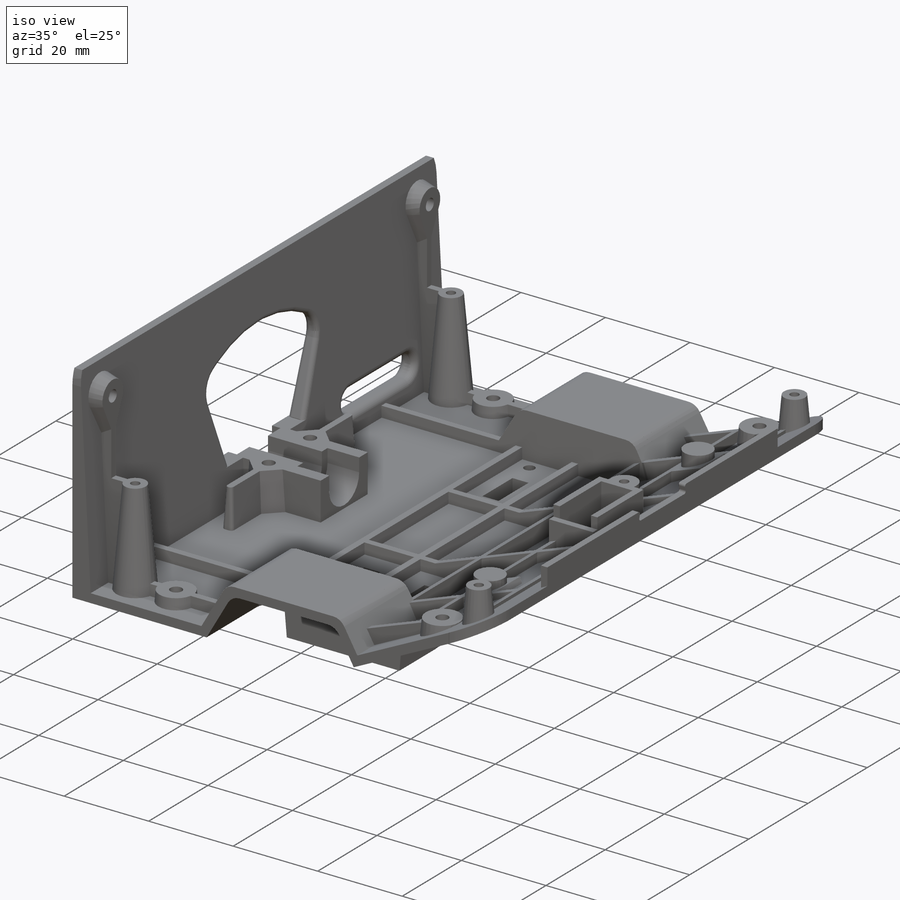
[diagram: iso view]
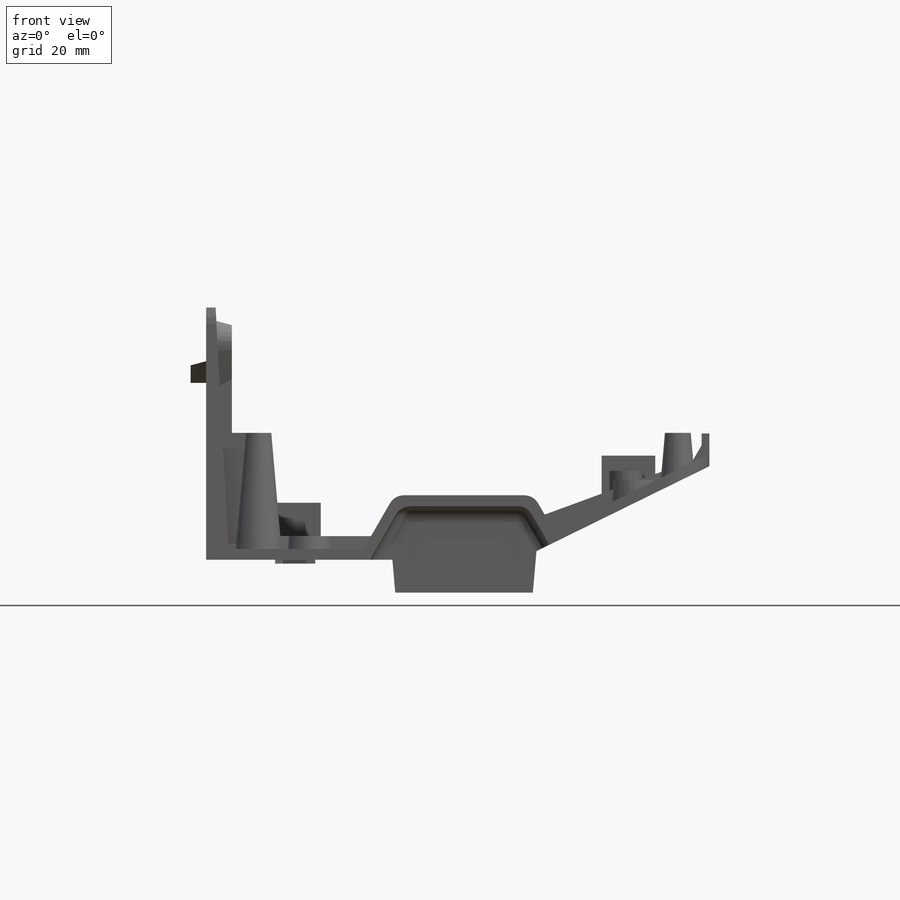
[diagram: front view]
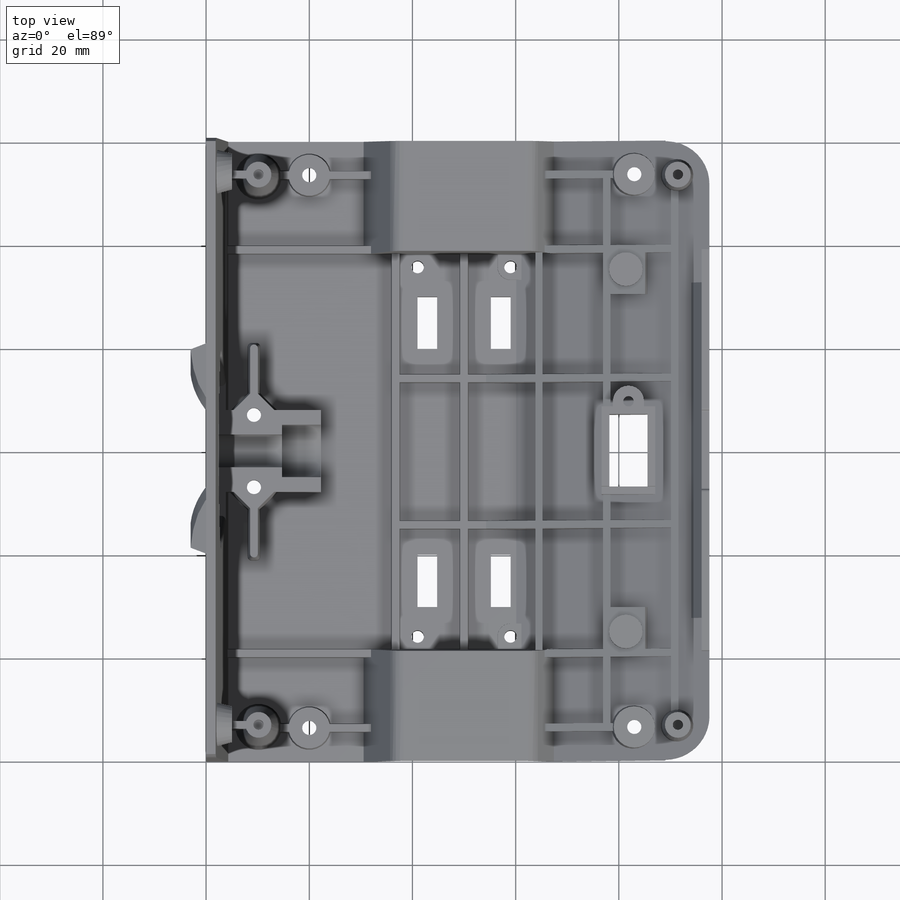
[diagram: top view]
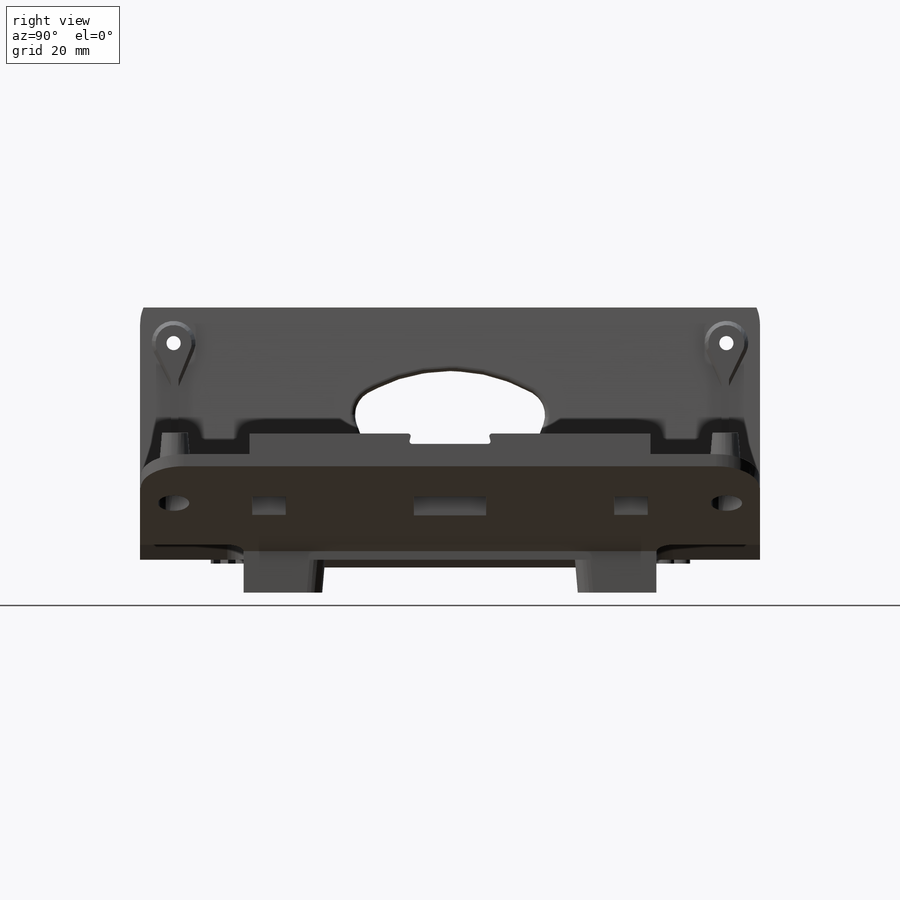
[diagram: right view]
SOLIDWORKS PART (.sldprt)
format: sldprt  version: not decoded by parser v0  size: 3,050,496 bytes
history: native  units: mm
features: sketch x67, cut_extrude x33, extrude x32, plane x14, fillet x12, mirror x8, chamfer x7, hole x3, material x1, shell x1 (+16 scaffold rows collapsed)
feature tree (194):
  scaffold x16  (default folders/planes/origin — collapsed)
  material  "1080 Polyurethane"
  sketch  "Sketch1"  dims[c1.D5=210.8327mm c1.D6=2.921mm c1.D9=42.0mm c1.D2=1.778mm c1.D3=~13.294936mm c2.D3=~176.837498deg c3.D3=1.778mm c3.D4=1.778mm c3.D1=12.7mm c3.D7=19.05mm c3.D8=55.626mm c3.D9=~3.260846mm c3.D5=~99.05571mm c3.D6=~36.752023mm c4.D3=1.778mm c4.D2=~11.890434mm c5.D2=120.0deg c5.D3=~8.065742mm c6.D3=120.0deg c6.D4=24.5mm c6.D5=10.41mm c6.D6=50.0mm c6.D10=12.62mm c6.D11=~99.05571mm c6.D12=~18.873977mm c6.D1=0.0mm c7.D5=0.0mm c7.D1=0.0mm]
  extrude  "Boss-Extrude1"  Depth=123.19mm
  shell  "Shell1"  Thickness=2.1mm
  sketch  "Sketch44"  dims[D1=0.0mm]
  cut_extrude  "Cut-Extrude17"  Depth=1.5mm
  sketch  "Sketch45"  dims[D1=0.0mm]
  extrude  "Boss-Extrude17"  Depth=0.9mm
  mirror  "Mirror6"
  chamfer  "Chamfer4"  Distance=53.53mm Angle=3deg
  sketch  "Sketch2"  dims[D1=21.59mm]
  cut_extrude  "Cut-Extrude1"  [1 undecoded]
  sketch  "Sketch5"  dims[c1.D1=33.782mm c1.D2=2.1mm c1.D3=2.1mm c2.D1=3.0mm]
  extrude  "Boss-Extrude2"  Depth=80.01mm
  sketch  "Sketch6"
  extrude  "Boss-Extrude3"  Depth=1mm
  fillet  "Fillet2"  Radius=3mm
  mirror  "Mirror1"
  sketch  "Sketch7"  dims[D1=6.35mm D2=7.874mm]
  cut_extrude  "PivotHole"  [1 undecoded]
  sketch  "Sketch8"  dims[D1=3.0mm D2=15.875mm]
  extrude  "PivotBlock"  Depth=22.23mm
  sketch  "Sketch10"  dims[D1=21.844mm D2=26.67mm D3=15.24mm]
  extrude  "MotorMount"  Depth=6.35mm
  chamfer  "Chamfer2"  Distance=6.35mm Angle=5deg
  sketch  "Sketch12"
  cut_extrude  "Cut-Extrude4"  [1 undecoded]
  sketch  "Sketch11"  dims[D1=3.81mm D2=9.906mm D3=10.16mm D4=4.318mm D5=4.318mm]
  cut_extrude  "Cut-Extrude3"  [1 undecoded]
  mirror  "Mirror2"  ModelUUID=0mm UUID=0mm
  fillet  "Fillet15"  Radius=2.5mm
  hole  "#2 Clearance Hole1"  Diameter=2.4384mm Depth=61.976mm
  sketch  "Sketch22"  dims[D1=35.814mm D2=18.0mm]
  sketch  "Sketch21"  dims[hole-wizard template sketch: 60 standard entries collapsed; hole parameters kept: c18.Thru Hole Depth=61.976mm]
  plane  "Plane1"
  sketch  "Sketch26"  dims[D1=25.4mm D2=25.4mm D3=6.35mm]
  cut_extrude  "WirePassthrough"  Depth=5mm
  sketch  "Sketch29"  dims[c1.D2=~3.490275mm c1.D3=2.06mm c1.D1=2.54mm c2.D2=6.35mm]
  cut_extrude  "Hood-Pivot"  Depth=127mm
  plane  "Plane2"  Offset=1mm
  mirror  "Mirror5"
  sketch  "Sketch40"  dims[D1=14.732mm]
  cut_extrude  "Pivot-Clearance"  Depth=2mm
  sketch  "Sketch43"
  hole  "BLOCK, FFC Passthrough-1"  Diameter=19.05mm
  hole  "BLOCK, FFC Passthrough-3"  [1 undecoded]
  cut_extrude  "FFC-Passthrough"  [1 undecoded]
  fillet  "Fillet24"  Radius=3mm
  sketch  "Sketch46"  dims[D1=10.16mm]
  cut_extrude  "PivotBolt-Clearance"  Depth=7.5mm
  sketch  "Sketch47"  dims[D1=1.5mm D2=3.175mm D3=3.175mm D4=12.7mm]
  extrude  "PivotBlock-Ribs"  [1 undecoded]
  fillet  "Fillet25"  Radius=0.75mm
  sketch  "Sketch48"  dims[D3=2.74mm D1=6.37mm D2=7.0mm]
  cut_extrude  "Cut-Extrude19"  Depth=6.5mm
  plane  "Plane6"  Offset=1.5mm
  sketch  "Sketch51"
  cut_extrude  "Cut-Extrude23"  [1 undecoded]
  chamfer  "Chamfer5"  Distance=15mm Angle=3deg
  sketch  "Sketch57"  dims[D1=15.0mm]
  extrude  "ScoutLetters"  Depth=0.75mm
  sketch  "Sketch58"  dims[D1=13.208mm D2=44.958mm D3=30.0mm]
  cut_extrude  "SerialLabel"  Depth=0.5mm
  plane  "Plane7"  Offset=0.5mm
  sketch  "Sketch54"  dims[D1=5.0mm]
  extrude  "Boss-Extrude21"  [1 undecoded]
  sketch  "Sketch55"
  cut_extrude  "Cut-Extrude24"  [1 undecoded]
  sketch  "Sketch56"  dims[D1=7.0mm]
  extrude  "Boss-Extrude22"  Depth=1.5mm
  chamfer  "Chamfer6"  Distance=1.5mm Angle=30deg
  fillet  "Fillet26"  Radius=3.175mm
  sketch  "Sketch60"  dims[D1=0.0mm]
  cut_extrude  "Cut-Extrude28"  [1 undecoded]
  sketch  "Sketch61"  dims[D1=0.0mm]
  cut_extrude  "Cut-Extrude29"  [1 undecoded]
  plane  "Plane4"  Offset=22.5mm
  sketch  "Sketch34"  dims[c1.D4=~1.843868mm c1.D5=~2.70764mm c1.D3=~2.70764mm c1.D6=~2.38125mm c1.D2=5.0mm c2.D3=~2.70764mm c2.D4=5.0mm c2.D1=6.985mm c2.D2=6.35mm c3.D3=~10.63498mm c3.D4=53.34mm c4.D3=~2.38125mm c4.D1=10.16mm c4.D6=15.24mm c5.D3=2.54mm c5.D4=106.68mm c6.D3=106.68mm c6.D4=81.28mm c7.D3=0.762mm c7.D6=0.762mm]
  extrude  "PCB-Mount"  [1 undecoded]
  fillet  "Fillet27"  Radius=10mm
  sketch  "Sketch62"  dims[D1=0.0mm D2=1.52mm]
  cut_extrude  "Cut-Extrude30"  [1 undecoded]
  sketch  "Sketch63"  dims[D1=0.0mm D2=1.52mm]
  cut_extrude  "Cut-Extrude31"  [1 undecoded]
  sketch  "Sketch64"  dims[D1=0.0mm]
  cut_extrude  "Cut-Extrude32"  Depth=1.52mm
  sketch  "Sketch65"  dims[D1=0.0mm]
  cut_extrude  "Cut-Extrude33"  Depth=1.52mm
  plane  "Plane8"
  sketch  "Sketch66"  dims[D1=0.136mm D2=0.0mm]
  cut_extrude  "Cut-Extrude34"  [1 undecoded]
  sketch  "Sketch67"  dims[D1=5.2mm]
  cut_extrude  "Cut-Extrude35"  [1 undecoded]
  sketch  "Sketch88"  dims[D1=1.5mm]
  extrude  "PCB-MountRib"  [1 undecoded]
  plane  "Plane9"
  plane  "Plane14"  Offset=2.5mm
  sketch  "Sketch72"  dims[c1.D1=8.0mm c1.D3=8.0mm c1.D2=54.0mm c2.D3=20.0mm c2.D4=1.5mm c2.D5=0.75mm c2.D2=6.5mm]
  extrude  "ScrewBoss-Side"  [1 undecoded]
  sketch  "Sketch73"  dims[D1=6.096mm]
  cut_extrude  "ScrewBoss-HeadClearance"  Depth=1.5mm
  sketch  "Sketch74"  dims[D1=2.74mm]
  cut_extrude  "ScrewBoss-Hole"  [1 undecoded]
  plane  "Plane15"  Offset=3mm
  sketch  "Sketch75"  dims[D1=8.0mm D2=63.0mm D3=1.5mm]
  extrude  "ScrewBoss-Side2"  [1 undecoded]
  sketch  "Sketch77"  dims[D1=2.74mm]
  cut_extrude  "ScrewBoss-Hole2"  [1 undecoded]
  sketch  "Sketch78"  dims[D1=~8.435653mm]
  cut_extrude  "ScrewBoss-HeadClearance2"  Depth=1.5mm
  plane  "Plane18"
  plane  "Plane16"  Offset=5mm
  sketch  "Sketch80"  dims[c1.D1=7.0mm c1.D2=8.0mm c1.D3=8.0mm c2.D2=52.0mm c2.D3=42.0mm c3.D2=6.5mm]
  extrude  "Boss-Extrude29"  [1 undecoded]
  sketch  "Sketch81"  dims[D1=6.096mm]
  cut_extrude  "Cut-Extrude41"  Depth=1.5mm
  sketch  "Sketch82"  dims[D1=2.74mm]
  cut_extrude  "Cut-Extrude42"  [1 undecoded]
  sketch  "Sketch68"  dims[c1.D1=12.0mm c1.D2=35.0mm c1.D3=1.5mm c1.D4=5.0mm c2.D1=12.0mm c2.D3=1.5mm]
  extrude  "Ribs-Longitudinal"  [1 undecoded]
  sketch  "Sketch84"  dims[D1=1.0mm D2=0.25mm]
  extrude  "ScrewBoss-Rib"  Depth=1.5mm
  mirror  "Mirror7"
  sketch  "Sketch85"  dims[D1=1.5mm D2=14.0mm D3=14.0mm D4=14.0mm D5=8.75mm D6=8.75mm]
  extrude  "Ribs-Latitude"  [1 undecoded]
  sketch  "Sketch87"  dims[D1=0.0mm]
  cut_extrude  "Cut-Extrude44"  Depth=79.5mm
  sketch  "Sketch89"  dims[D1=1.5mm]
  extrude  "Boss-Extrude30"  [1 undecoded]
  chamfer  "Chamfer8"  Distance=12mm
  sketch  "Sketch90"  dims[D1=1.5mm D2=8.3mm]
  extrude  "Boss-Extrude31"  [1 undecoded]
  sketch  "Sketch93"  dims[D1=1.5mm]
  extrude  "Boss-Extrude33"  [1 undecoded]
  sketch  "Sketch94"  dims[D1=1.5mm D2=3.5mm D3=5.0mm]
  extrude  "Boss-Extrude34"  [1 undecoded]
  sketch  "Sketch95"  dims[D1=2.0mm]
  cut_extrude  "Cut-Extrude45"  Depth=6.35mm
  sketch  "Sketch96"  dims[c1.D1=52.709mm c2.D1=35.0deg c2.D2=13.2mm c2.D4=9.0mm c2.D5=10.0mm c3.D4=5.0mm c3.D3=3.0mm c3.D6=1.0mm]
  extrude  "Boss-Extrude35"  Depth=3mm
  chamfer  "Chamfer9"  Distance=3mm Angle=45deg
  mirror  "Mirror8"
  fillet  "Fillet28"  Radius=10mm
  plane  "Plane19"
  sketch  "Sketch97"  dims[D1=1.5mm D2=77.78mm]
  extrude  "Boss-Extrude36"  Depth=4mm
  sketch  "Sketch98"  dims[c1.D1=~2.944198mm c2.D1=15.0deg c2.D2=8.0mm c2.D3=2.0mm]
  cut_extrude  "Cut-Extrude46"  [1 undecoded]
  fillet  "Fillet29"  Radius=0.5mm
  fillet  "Fillet30"  Radius=4mm
  chamfer  "Chamfer10"  Distance=5mm Angle=15deg
  fillet  "Fillet32"  Radius=1.5mm
  fillet  "Fillet33"  Radius=1mm
  sketch  "Sketch99"  dims[D1=7.385mm D2=14.014mm D3=12.0mm]
  cut_extrude  "Cut-Extrude47"  [1 undecoded]
  plane  "Plane20"
  sketch  "Sketch100"  dims[D1=1.5mm]
  extrude  "Boss-Extrude37"  Depth=3mm
  sketch  "Sketch101"  dims[D1=0.0mm D2=0.0mm]
  extrude  "Boss-Extrude38"  Depth=2.6mm
  sketch  "Sketch102"  dims[D1=2.032mm D2=2.0mm]
  extrude  "Boss-Extrude39"  [1 undecoded]
  sketch  "Sketch103"  dims[c1.D1=4.0mm c1.D2=~2.712336mm c2.D2=30.0deg]
  extrude  "Boss-Extrude40"  Depth=65mm
  sketch  "Sketch105"  dims[c1.D1=30.0mm c1.D2=6.5mm c2.D1=5.0mm]
  cut_extrude  "Cut-Extrude49"  [1 undecoded]
  plane  "Plane21"
  sketch  "Sketch110"  dims[D1=2.5mm D2=3.0mm]
  extrude  "Boss-Extrude45"  Depth=1mm
  sketch  "Sketch111"
  extrude  "Boss-Extrude46"  Depth=1.5mm
  mirror  "Mirror13"
  fillet  "Fillet36"  Radius=2mm
  sketch  "Sketch112"  dims[D1=6.5mm]
  extrude  "Boss-Extrude47"  Depth=4mm
  sketch  "Sketch113"
  extrude  "Boss-Extrude49"  [1 undecoded]
  mirror  "Mirror14"  Thickness=80.01mm
decode coverage: 115 of 163 modeling features carry decoded parameters
note: ~ marks probable driven/reference dimensions
note: 35 parameter values undecoded
summary: no parameter record found for 35 features
note: suppression state not decoded; provenance and decode notes live in map.json
